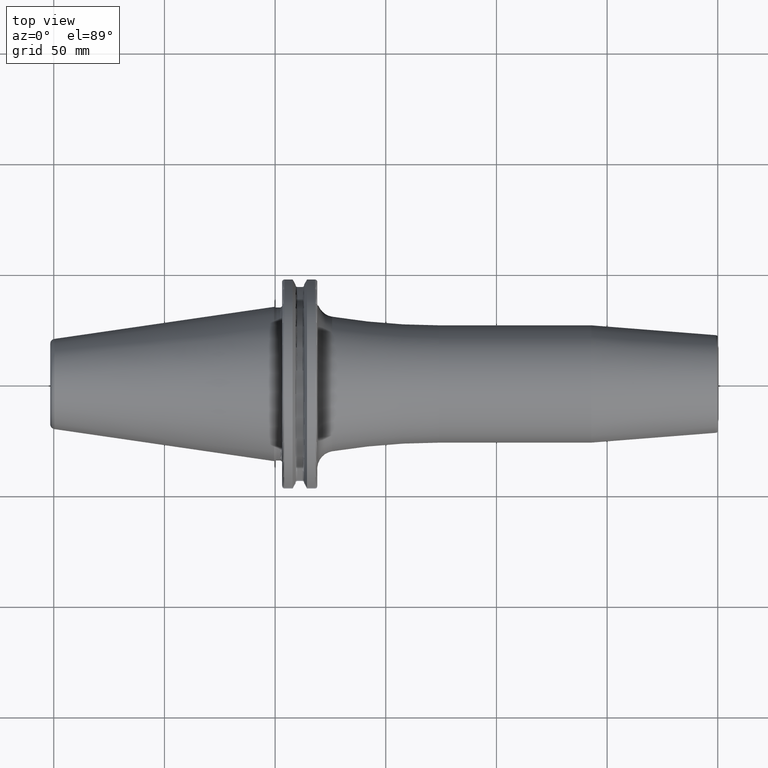
[diagram: clean part render]
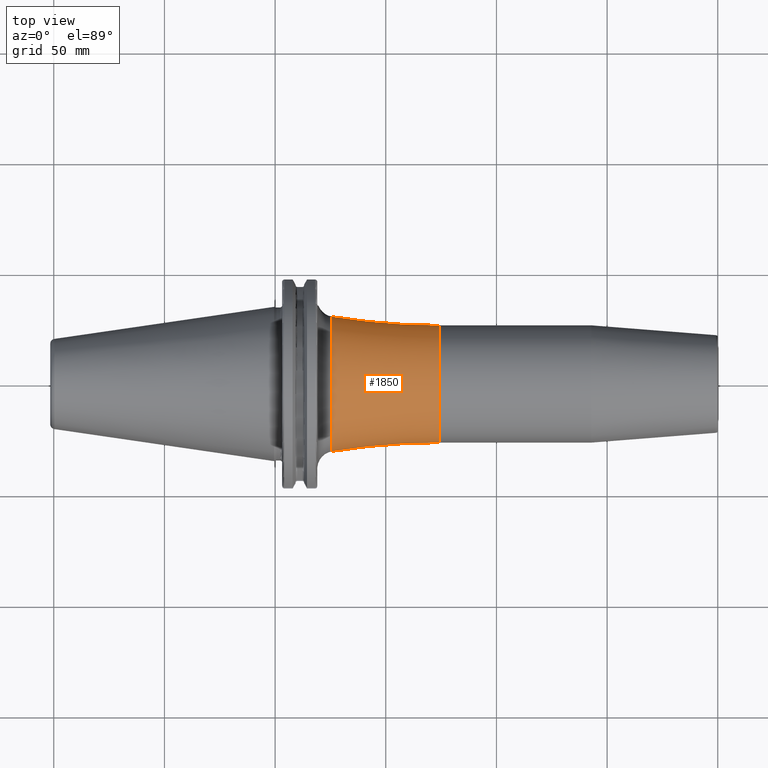
[diagram: same view with one face highlighted and labeled with its STEP entity id]
A machine part, top view. The second image highlights one B-rep face of the part: STEP entity #1850.
In plain terms, the highlighted toroidal blend (fillet) surface has major radius 326.5 mm and minor (blend) radius 300 mm.
Its self-contained STEP definition (entity closure, byte-faithful):
#230=CARTESIAN_POINT('',(2.576232876712E1,0.E0,0.E0));
#231=DIRECTION('',(1.E0,0.E0,0.E0));
#232=DIRECTION('',(0.E0,1.E0,0.E0));
#233=AXIS2_PLACEMENT_3D('',#230,#231,#232);
#240=CARTESIAN_POINT('',(7.405E1,-3.265E2,-7.996943598432E-14));
#241=DIRECTION('',(0.E0,0.E0,1.E0));
#242=DIRECTION('',(0.E0,1.E0,0.E0));
#243=AXIS2_PLACEMENT_3D('',#240,#241,#242);
#245=CARTESIAN_POINT('',(7.405E1,3.265E2,3.998471799216E-14));
#246=DIRECTION('',(0.E0,0.E0,-1.E0));
#247=DIRECTION('',(0.E0,-1.E0,0.E0));
#248=AXIS2_PLACEMENT_3D('',#245,#246,#247);
#268=CARTESIAN_POINT('',(7.405E1,0.E0,0.E0));
#269=DIRECTION('',(1.E0,0.E0,0.E0));
#270=DIRECTION('',(0.E0,1.E0,0.E0));
#271=AXIS2_PLACEMENT_3D('',#268,#269,#270);
#1510=CARTESIAN_POINT('',(7.405E1,2.65E1,0.E0));
#1511=CARTESIAN_POINT('',(7.405E1,-2.65E1,0.E0));
#1512=VERTEX_POINT('',#1510);
#1513=VERTEX_POINT('',#1511);
#1521=CARTESIAN_POINT('',(2.576232876712E1,-3.041166722259E1,0.E0));
#1522=CARTESIAN_POINT('',(2.576232876712E1,3.041166722259E1,0.E0));
#1523=VERTEX_POINT('',#1521);
#1524=VERTEX_POINT('',#1522);
#1836=CARTESIAN_POINT('',(7.405E1,0.E0,0.E0));
#1837=DIRECTION('',(1.E0,0.E0,0.E0));
#1838=DIRECTION('',(0.E0,-1.E0,0.E0));
#1839=AXIS2_PLACEMENT_3D('',#1836,#1837,#1838);
#1840=TOROIDAL_SURFACE('',#1839,3.265E2,3.E2);
#1841=ORIENTED_EDGE('',*,*,#1824,.F.);
#1843=ORIENTED_EDGE('',*,*,#1842,.F.);
#1845=ORIENTED_EDGE('',*,*,#1844,.T.);
#1847=ORIENTED_EDGE('',*,*,#1846,.T.);
#1848=EDGE_LOOP('',(#1841,#1843,#1845,#1847));
#1849=FACE_OUTER_BOUND('',#1848,.F.);
#1850=ADVANCED_FACE('',(#1849),#1840,.F.);
#234=CIRCLE('',#233,3.041166722259E1);
#244=CIRCLE('',#243,3.E2);
#249=CIRCLE('',#248,3.E2);
#272=CIRCLE('',#271,2.65E1);
#1824=EDGE_CURVE('',#1524,#1523,#234,.T.);
#1842=EDGE_CURVE('',#1512,#1524,#249,.T.);
#1844=EDGE_CURVE('',#1512,#1513,#272,.T.);
#1846=EDGE_CURVE('',#1513,#1523,#244,.T.);